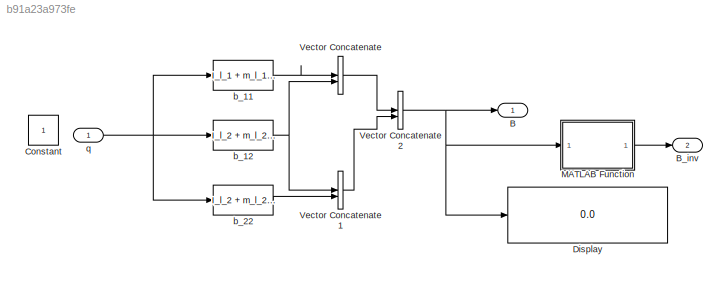
MODEL slx_b91a23a973fe
KIND model
CONFIG AbsTol = auto
CONFIG EnableMultiTasking = on
CONFIG FixedStep = auto
CONFIG MaxStep = auto
CONFIG MinStep = auto
CONFIG RelTol = 1e-3
CONFIG SampleTimeConstraint = Unconstrained
CONFIG SolverName = ode45
CONFIG StartTime = 0.0
CONFIG StopTime = 10.0
BLOCK [Outport] B
BLOCK [Outport] B_inv
  Port = 2
BLOCK [Constant] Constant
  IOType = siggen
BLOCK [Display] Display
  Decimation = 1
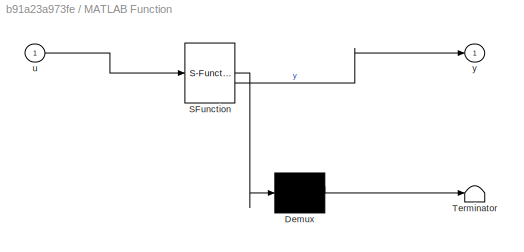
BLOCK [SubSystem] MATLAB Function
  ErrorFcn = Stateflow.Translate.translate
  PermitHierarchicalResolution = ExplicitOnly
  SFBlockType = MATLAB Function
  TreatAsAtomicUnit = on
BLOCK [Demux] MATLAB Function/ Demux 
  Outputs = 1
BLOCK [S-Function] MATLAB Function/ SFunction 
  EnableBusSupport = on
  FunctionName = sf_sfun
  PortCounts = [1 2]
  SFcnIsStateOwnerBlock = off
  SFunctionDeploymentMode = off
  Tag = Stateflow S-Function 2
BLOCK [Terminator] MATLAB Function/ Terminator 
BLOCK [Inport] MATLAB Function/u
BLOCK [Outport] MATLAB Function/y
BLOCK [Concatenate] Vector Concatenate
BLOCK [Concatenate] Vector Concatenate1
BLOCK [Concatenate] Vector Concatenate2
  ConcatenateDimension = 2
  Mode = Multidimensional array
BLOCK [Fcn] b_11
  Expr = I_l_1 + m_l_1*l_1^2 + k_r_1^2*I_m_1 + I_l_2 + m_l_2*(a_1^2 + l_2^2 + 2*a_1*l_2*cos(u(2))) + I_m_2 + m_m_2*a_1^2
BLOCK [Fcn] b_12
  Expr = I_l_2 + m_l_2*(l_2^2 + a_1*l_2*cos(u(2))) + k_r_2*I_m_2
BLOCK [Fcn] b_22
  Expr = I_l_2 + m_l_2*l_2^2 + k_r_2^2*I_m_2
BLOCK [Inport] q
  PortDimensions = 2
LINE MATLAB Function:1 -> B_inv:1
LINE Vector Concatenate1:1 -> Vector Concatenate2:2
NET Vector Concatenate2:1 -> B:1, Display:1, MATLAB Function:1
LINE Vector Concatenate:1 -> Vector Concatenate2:1
LINE b_11:1 -> Vector Concatenate:1
NET b_12:1 -> Vector Concatenate1:1, Vector Concatenate:2
LINE b_22:1 -> Vector Concatenate1:2
NET q:1 -> b_11:1, b_12:1, b_22:1
note: NET lines group one-source signal fan-out (src -> all destinations, sorted); 1:1 wires keep LINE
CHART MATLAB Function states=1 transitions=1
  STATE_LABEL 'eML_blk_kernel()'
  STATE_LABEL 'SCRIPT:\nfunction y = fcn(u)\n%#codegen\n\ny = pinv(u);'
CHART  states=0 transitions=0
